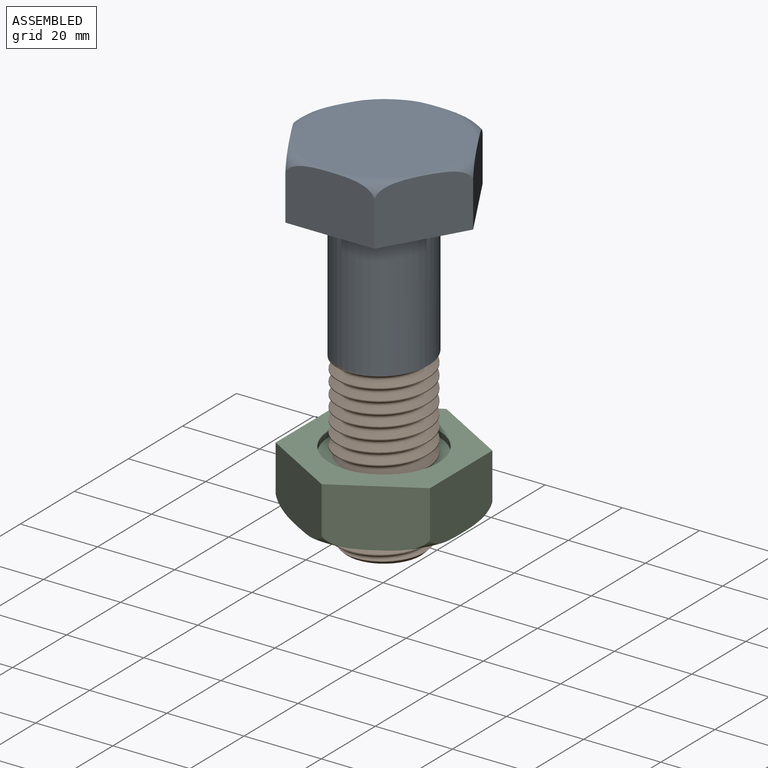
[diagram: assembled view]
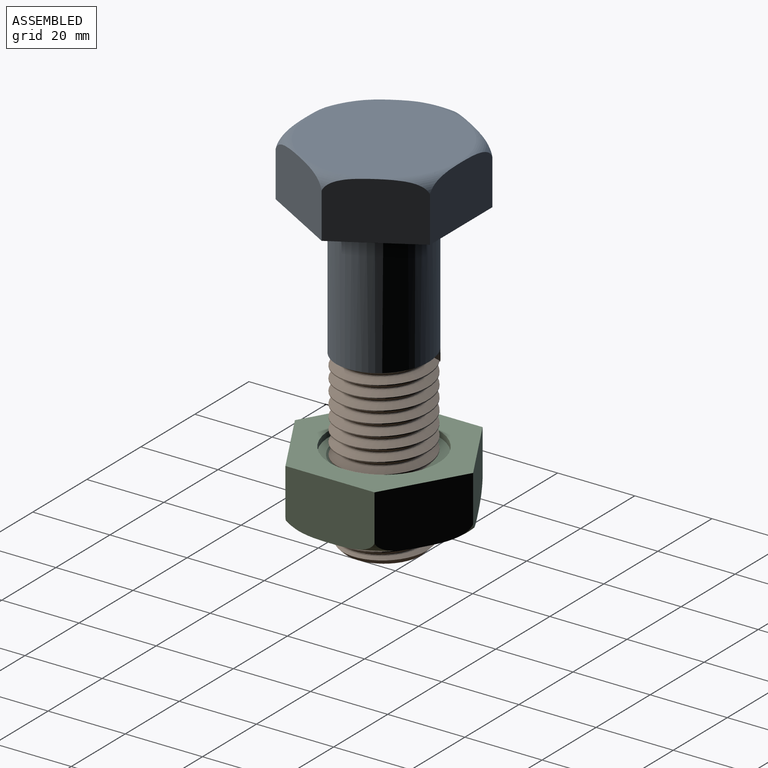
[diagram: assembled view, second angle]
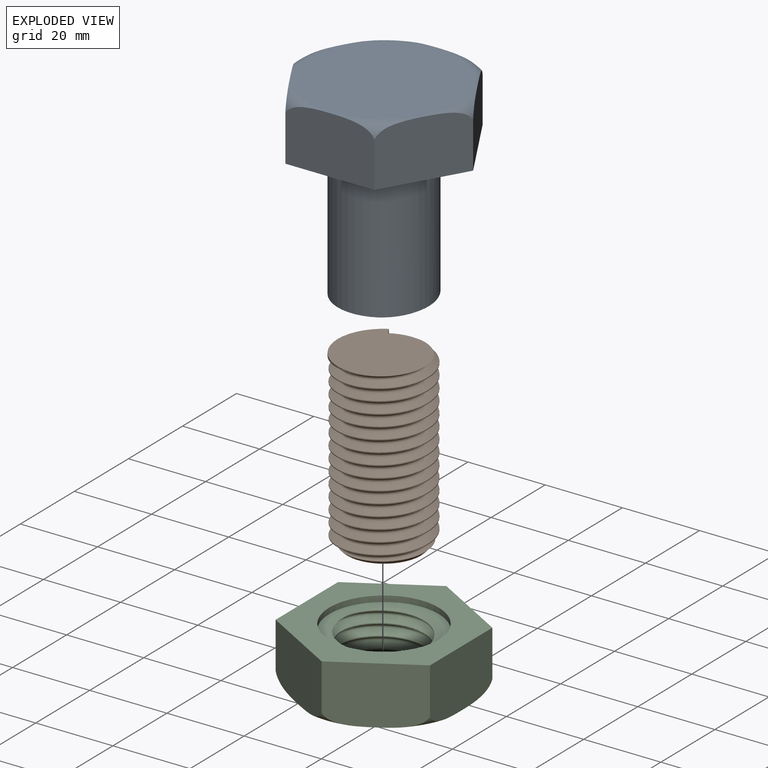
[diagram: exploded view]
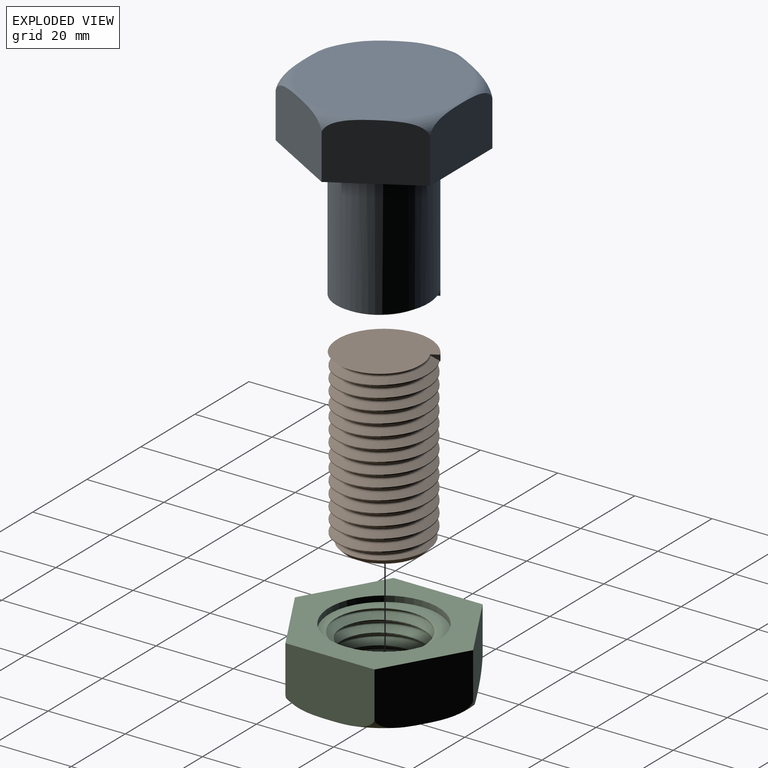
[diagram: exploded view, second angle]
ASSEMBLY  parts=3 mates=2
PART A: 15 faces, bbox 50.3x50.3x51.4 mm
  f0: cylinder r=12mm len=35mm, axis (0,0,1), area 2610.7mm2, adj f1,f8,f13,f14
  f1: plane 24.18x22.92mm, normal (0,0,-1), area 408.1mm2, adj f0,f11,f12,f13,f14
  f2: plane 20x14.94mm, normal (-0.87,0.5,0), area 331.1mm2, adj f3,f7,f8,f9
  f3: plane 20x14.94mm, normal (-0.87,-0.5,0), area 331.1mm2, adj f2,f4,f8,f9
  f4: plane 23.1x14.94mm, normal (0,-1,0), area 331.1mm2, adj f3,f5,f8,f9
  f5: plane 20x14.94mm, normal (0.87,-0.5,0), area 331.1mm2, adj f4,f6,f8,f9
  f6: plane 20x14.94mm, normal (0.87,0.5,0), area 331.1mm2, adj f5,f7,f8,f9
  f7: plane 23.1x14.94mm, normal (0,1,0), area 331mm2, adj f2,f6,f8,f9
  f8: plane 46.19x40mm, normal (0,0,-1), area 933.3mm2, adj f0,f2,f3,f4,f5,f6,f7
  f9: torus R=19.15mm, axis (0,0,1), area 199.7mm2, adj f2,f3,f4,f5,f6,f7,f10
  f10: plane 39.25x39.25mm, normal (0,0,1), area 1210.2mm2, adj f9
  f11: bspline ~23.59x13.62mm, area 41.5mm2, adj f1,f12,f13,f14
  f12: bspline ~8.67x5.16mm, area 1.4mm2, adj f1,f11,f13
  f13: plane 2.22x1.53mm, normal (0,-1,0), area 1.9mm2, adj f0,f1,f11,f12,f14
  f14: bspline ~24.25x24mm, area 8.4mm2, adj f0,f1,f11,f13
PART B: 11 faces, bbox 25x28.5x48.3 mm
  f0: bspline ~46.03x27.24mm, area 2055.8mm2, adj f1,f3,f5,f7,f9
  f1: bspline ~45.7x23.12mm, area 785.1mm2, adj f0,f2,f5,f6,f8
  f2: bspline ~45.53x27.24mm, area 2011.4mm2, adj f1,f3,f6,f8,f9
  f3: cylinder r=11.8mm len=41.35mm, axis (0,0,-1), area 215.2mm2, adj f0,f2,f6,f9
  f4: cylinder r=12mm len=24mm, axis (0,0,1), area 28.3mm2, adj f5,f6,f7
  f5: plane 25.04x23.78mm, normal (0,0,1), area 408.1mm2, adj f0,f1,f4,f6,f7
  f6: plane 2.22x1.65mm, normal (0,-1,0), area 1.9mm2, adj f1,f2,f3,f4,f5,f7
  f7: bspline ~24.25x24mm, area 9.1mm2, adj f0,f4,f5,f6
  f8: cone r=12.26mm half-angle=45deg, axis (0,0,1), area 92mm2, adj f1,f2,f9,f10
  f9: cone r=12.26mm half-angle=45deg, axis (0,0,1), area 19.1mm2, adj f0,f2,f3,f8
  f10: plane 19.07x19.07mm, normal (0,0,-1), area 285.6mm2, adj f8
PART C: 21 faces, bbox 52.5x52.7x17.6 mm
  f0: bspline ~29.55x25.59mm, area 260.5mm2, adj f2,f3,f18,f19
  f1: cylinder r=10.7mm len=21.41mm, axis (0,0,-1), area 51.9mm2, adj f2,f3,f18,f19
  f2: bspline ~28.84x24.98mm, area 538.6mm2, adj f0,f1,f18,f19
  f3: bspline ~28.84x24.98mm, area 536.8mm2, adj f0,f1,f18,f19
  f4: plane 40.19x40mm, normal (0,0,1), area 616.4mm2, adj f5,f6,f7,f8,f9,f10,f12,f13
  f5: plane 22.53x17.53mm, normal (0.5,0.87,0), area 333.4mm2, adj f4,f6,f10,f11,f16,f17
  f6: plane 22.53x17.53mm, normal (-0.5,0.87,0), area 333.4mm2, adj f4,f5,f7,f11,f15,f16
  f7: plane 25.62x17.53mm, normal (-1,0,0), area 333.4mm2, adj f4,f6,f8,f11,f14,f15
  f8: plane 22.53x17.53mm, normal (-0.5,-0.87,0), area 333.4mm2, adj f4,f7,f9,f11,f13,f14
  f9: plane 22.53x17.53mm, normal (0.5,-0.87,0), area 333.4mm2, adj f4,f8,f10,f11,f12,f13
  f10: plane 25.62x17.53mm, normal (1,0,0), area 333.4mm2, adj f4,f5,f9,f11,f12,f17
  f11: plane 46.19x40mm, normal (0,0,-1), area 753.8mm2, adj f5,f6,f7,f8,f9,f10,f20
  f12: torus R=19.2mm, axis (0,0,1), area 40.9mm2, adj f4,f9,f10
  f13: torus R=19.2mm, axis (0,0,1), area 40.9mm2, adj f4,f8,f9
  f14: torus R=19.2mm, axis (0,0,1), area 40.9mm2, adj f4,f7,f8
  f15: torus R=19.2mm, axis (0,0,1), area 40.9mm2, adj f4,f6,f7
  f16: torus R=19.2mm, axis (0,0,1), area 40.9mm2, adj f4,f5,f6
  f17: torus R=19.2mm, axis (0,0,1), area 40.9mm2, adj f4,f5,f10
  f18: cone r=0mm half-angle=45deg, axis (0,0,1), area 302mm2, adj f0,f1,f2,f3,f4
  f19: plane 29.34x29.34mm, normal (0,0,-1), area 195.2mm2, adj f0,f1,f2,f3,f20
  f20: cylinder r=14.18mm len=28.36mm, axis (0,0,-1), area 133.7mm2, adj f11,f19
PLACE A rot(axis=(0,0,1),120deg) t=(-47.43,13.85,-0.21)mm
PLACE B rot(axis=(0,0,1),120deg) t=(-47.43,13.85,-0.21)mm
PLACE C rot(axis=(0,1,0),180deg) t=(-47.43,13.85,-57.21)mm fixed
MATE fastened B.f5 <-> A.f1  axis (0,0,1) through (-52.34,22.34,-35.21)mm
MATE cylindrical C.f1 <-> B.f3  axis (0,0,1) through (-47.43,13.85,-57.21)mm
